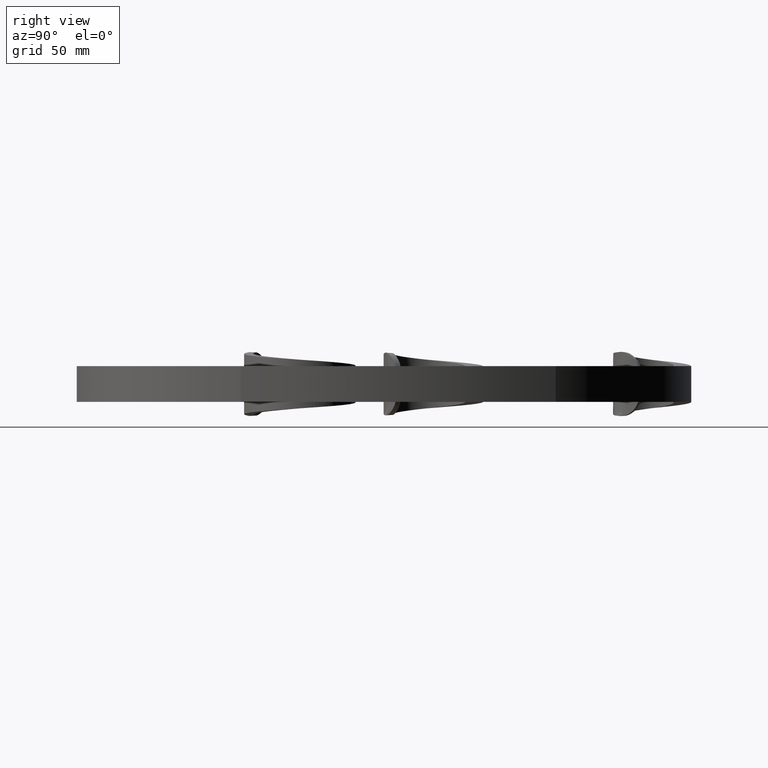
[diagram: clean part render]
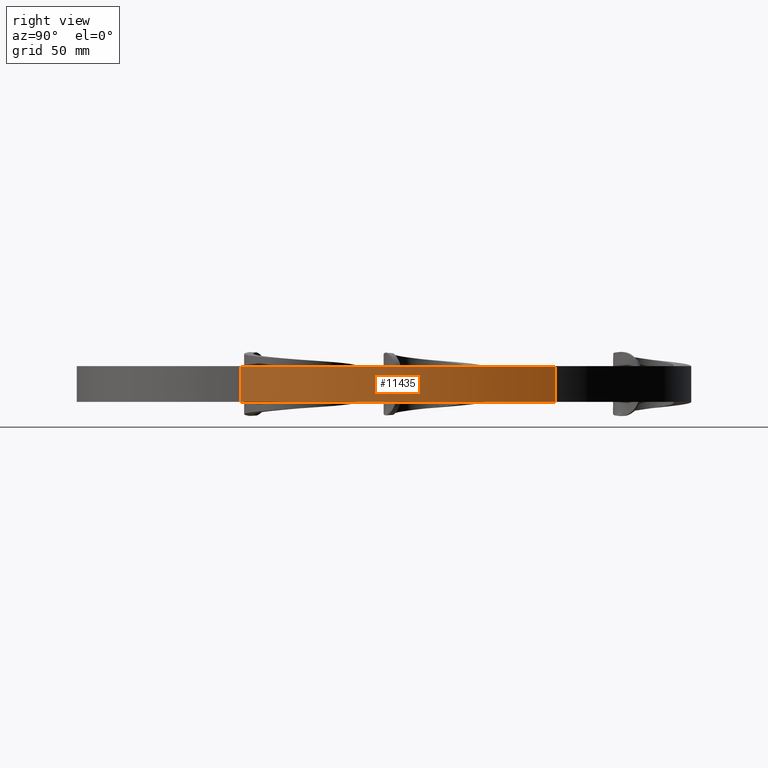
[diagram: same view with one face highlighted and labeled with its STEP entity id]
A machine part, right view. The second image highlights one B-rep face of the part: STEP entity #11435.
In plain terms, the highlighted cylindrical surface (partial cylindrical patch) has radius 215 mm, axis along (-0, -0, -1).
Its self-contained STEP definition (entity closure, byte-faithful):
#253 = CARTESIAN_POINT ( 'NONE',  ( 83.91335846079803673, -63.87055628427459908, -7.999999999999998224 ) ) ;
#656 = ORIENTED_EDGE ( 'NONE', *, *, #13215, .F. ) ;
#688 = CARTESIAN_POINT ( 'NONE',  ( 83.91335846079803673, -63.87055628427461329, -7.999999999999998224 ) ) ;
#710 = EDGE_CURVE ( 'NONE', #3617, #2155, #2373, .T. ) ;
#2155 = VERTEX_POINT ( 'NONE', #688 ) ;
#2220 = DIRECTION ( 'NONE',  ( -1.000000000000000000, 0.000000000000000000, 0.000000000000000000 ) ) ;
#2373 = CIRCLE ( 'NONE', #12503, 214.9999999999999432 ) ;
#2443 = EDGE_CURVE ( 'NONE', #8986, #10176, #7635, .T. ) ;
#3073 = DIRECTION ( 'NONE',  ( 0.8812603383946453484, 0.4726311627184089370, 0.000000000000000000 ) ) ;
#3457 = DIRECTION ( 'NONE',  ( 0.000000000000000000, 0.000000000000000000, 1.000000000000000000 ) ) ;
#3617 = VERTEX_POINT ( 'NONE', #11486 ) ;
#3927 = LINE ( 'NONE', #253, #10373 ) ;
#4380 = DIRECTION ( 'NONE',  ( 0.000000000000000000, 0.000000000000000000, 1.000000000000000000 ) ) ;
#4435 = EDGE_CURVE ( 'NONE', #3617, #8986, #7275, .T. ) ;
#4833 = CARTESIAN_POINT ( 'NONE',  ( 61.97097275484873791, 76.85258371261703303, 7.999999999999998224 ) ) ;
#4858 = CARTESIAN_POINT ( 'NONE',  ( -127.4999999999999716, -24.76311627184091080, 7.999999999999998224 ) ) ;
#4979 = DIRECTION ( 'NONE',  ( -0.000000000000000000, -0.000000000000000000, -1.000000000000000000 ) ) ;
#6422 = DIRECTION ( 'NONE',  ( -0.000000000000000000, -0.000000000000000000, -1.000000000000000000 ) ) ;
#6474 = CARTESIAN_POINT ( 'NONE',  ( 83.91335846079803673, -63.87055628427461329, 7.999999999999998224 ) ) ;
#7275 = LINE ( 'NONE', #8158, #9094 ) ;
#7635 = CIRCLE ( 'NONE', #9083, 214.9999999999999432 ) ;
#7999 = ORIENTED_EDGE ( 'NONE', *, *, #710, .F. ) ;
#8158 = CARTESIAN_POINT ( 'NONE',  ( 61.97097275484872370, 76.85258371261701882, -7.999999999999998224 ) ) ;
#8986 = VERTEX_POINT ( 'NONE', #4833 ) ;
#9083 = AXIS2_PLACEMENT_3D ( 'NONE', #4858, #12265, #10156 ) ;
#9094 = VECTOR ( 'NONE', #4380, 1000.000000000000000 ) ;
#9505 = CARTESIAN_POINT ( 'NONE',  ( -127.4999999999999716, -24.76311627184091080, 0.000000000000000000 ) ) ;
#9707 = ORIENTED_EDGE ( 'NONE', *, *, #2443, .T. ) ;
#10156 = DIRECTION ( 'NONE',  ( 0.8812603383946453484, 0.4726311627184089370, 0.000000000000000000 ) ) ;
#10176 = VERTEX_POINT ( 'NONE', #6474 ) ;
#10373 = VECTOR ( 'NONE', #3457, 1000.000000000000000 ) ;
#10554 = AXIS2_PLACEMENT_3D ( 'NONE', #9505, #6422, #2220 ) ;
#11319 = CYLINDRICAL_SURFACE ( 'NONE', #10554, 214.9999999999999432 ) ;
#11435 = ADVANCED_FACE ( 'NONE', ( #13319 ), #11319, .T. ) ;
#11486 = CARTESIAN_POINT ( 'NONE',  ( 61.97097275484873791, 76.85258371261703303, -7.999999999999998224 ) ) ;
#12265 = DIRECTION ( 'NONE',  ( -0.000000000000000000, -0.000000000000000000, -1.000000000000000000 ) ) ;
#12503 = AXIS2_PLACEMENT_3D ( 'NONE', #13543, #4979, #3073 ) ;
#13215 = EDGE_CURVE ( 'NONE', #2155, #10176, #3927, .T. ) ;
#13319 = FACE_OUTER_BOUND ( 'NONE', #13411, .T. ) ;
#13411 = EDGE_LOOP ( 'NONE', ( #656, #7999, #13451, #9707 ) ) ;
#13451 = ORIENTED_EDGE ( 'NONE', *, *, #4435, .T. ) ;
#13543 = CARTESIAN_POINT ( 'NONE',  ( -127.4999999999999716, -24.76311627184091080, -7.999999999999998224 ) ) ;